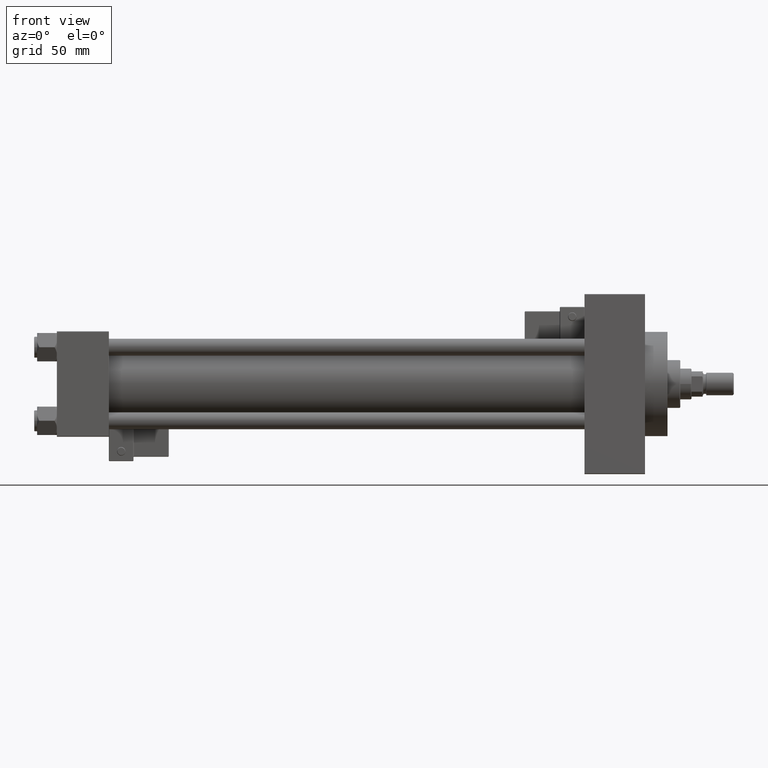
[diagram: clean part render]
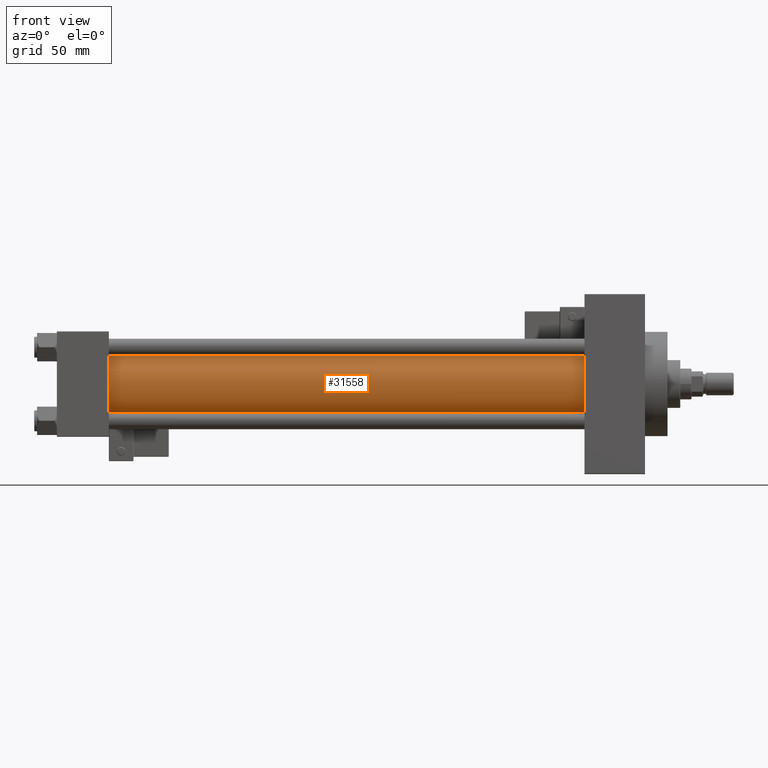
[diagram: same view with one face highlighted and labeled with its STEP entity id]
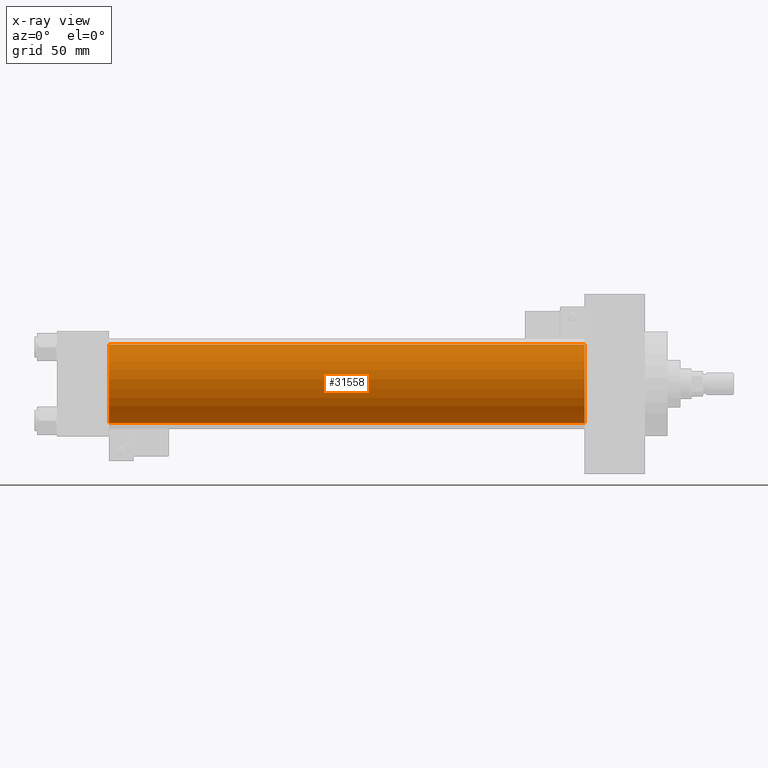
[diagram: x-ray of the same camera — body ghosted, the highlighted face saturated]
A machine part, front view. The second image highlights one B-rep face of the part: STEP entity #31558.
The next image is the same camera in x-ray: the body ghosted, the highlighted face saturated — about 0% of this face is hidden behind the body in this view.
In plain terms, the highlighted cylindrical surface (partial cylindrical patch) has radius 28 mm, axis along (-1, -0, -0).
Its self-contained STEP definition (entity closure, byte-faithful):
#539 = ORIENTED_EDGE ( 'NONE', *, *, #37946, .F. ) ;
#540 = ORIENTED_EDGE ( 'NONE', *, *, #38820, .T. ) ;
#1988 = ORIENTED_EDGE ( 'NONE', *, *, #3139, .F. ) ;
#2686 = DIRECTION ( 'NONE',  ( 0.000000000000000000, 0.000000000000000000, 1.000000000000000000 ) ) ;
#3139 = EDGE_CURVE ( 'NONE', #11517, #10291, #29356, .T. ) ;
#5428 = DIRECTION ( 'NONE',  ( -1.000000000000000000, -0.000000000000000000, -0.000000000000000000 ) ) ;
#5485 = CARTESIAN_POINT ( 'NONE',  ( 375.0000000000000000, 8.269258236473784371E-16, -28.00000000000000000 ) ) ;
#5670 = DIRECTION ( 'NONE',  ( 0.000000000000000000, 0.000000000000000000, 1.000000000000000000 ) ) ;
#5907 = AXIS2_PLACEMENT_3D ( 'NONE', #50000, #51019, #2686 ) ;
#7958 = EDGE_LOOP ( 'NONE', ( #1988, #539, #21555, #540 ) ) ;
#8577 = FACE_OUTER_BOUND ( 'NONE', #7958, .T. ) ;
#9455 = DIRECTION ( 'NONE',  ( 0.000000000000000000, 0.000000000000000000, -1.000000000000000000 ) ) ;
#10033 = VECTOR ( 'NONE', #37710, 1000.000000000000000 ) ;
#10291 = VERTEX_POINT ( 'NONE', #17307 ) ;
#11517 = VERTEX_POINT ( 'NONE', #37728 ) ;
#12373 = VECTOR ( 'NONE', #37506, 1000.000000000000000 ) ;
#14727 = CARTESIAN_POINT ( 'NONE',  ( 375.0000000000000000, -2.602085213965210642E-15, 28.00000000000000000 ) ) ;
#15893 = CIRCLE ( 'NONE', #34353, 28.00000000000000000 ) ;
#16746 = VERTEX_POINT ( 'NONE', #27393 ) ;
#17307 = CARTESIAN_POINT ( 'NONE',  ( 36.99999999999997868, 8.269258236473784371E-16, -28.00000000000000000 ) ) ;
#20475 = DIRECTION ( 'NONE',  ( 1.000000000000000000, 0.000000000000000000, 0.000000000000000000 ) ) ;
#21555 = ORIENTED_EDGE ( 'NONE', *, *, #40577, .T. ) ;
#27393 = CARTESIAN_POINT ( 'NONE',  ( 36.99999999999997868, -2.602085213965210642E-15, 28.00000000000000000 ) ) ;
#28960 = AXIS2_PLACEMENT_3D ( 'NONE', #36660, #5428, #5670 ) ;
#29356 = LINE ( 'NONE', #5485, #12373 ) ;
#31558 = ADVANCED_FACE ( 'NONE', ( #8577 ), #39305, .T. ) ;
#34353 = AXIS2_PLACEMENT_3D ( 'NONE', #49397, #20475, #9455 ) ;
#34386 = CIRCLE ( 'NONE', #5907, 28.00000000000000000 ) ;
#36660 = CARTESIAN_POINT ( 'NONE',  ( 375.0000000000000000, -2.602085213965210642E-15, 0.000000000000000000 ) ) ;
#37506 = DIRECTION ( 'NONE',  ( -1.000000000000000000, -0.000000000000000000, -0.000000000000000000 ) ) ;
#37710 = DIRECTION ( 'NONE',  ( -1.000000000000000000, -0.000000000000000000, -0.000000000000000000 ) ) ;
#37728 = CARTESIAN_POINT ( 'NONE',  ( 375.0000000000000000, 8.269258236473784371E-16, -28.00000000000000000 ) ) ;
#37946 = EDGE_CURVE ( 'NONE', #43762, #11517, #15893, .T. ) ;
#38820 = EDGE_CURVE ( 'NONE', #16746, #10291, #34386, .T. ) ;
#39305 = CYLINDRICAL_SURFACE ( 'NONE', #28960, 28.00000000000000000 ) ;
#40577 = EDGE_CURVE ( 'NONE', #43762, #16746, #45870, .T. ) ;
#42691 = CARTESIAN_POINT ( 'NONE',  ( 375.0000000000000000, -2.602085213965210642E-15, 28.00000000000000000 ) ) ;
#43762 = VERTEX_POINT ( 'NONE', #14727 ) ;
#45870 = LINE ( 'NONE', #42691, #10033 ) ;
#49397 = CARTESIAN_POINT ( 'NONE',  ( 375.0000000000000000, -2.602085213965210642E-15, 0.000000000000000000 ) ) ;
#50000 = CARTESIAN_POINT ( 'NONE',  ( 36.99999999999997868, -2.602085213965210642E-15, 0.000000000000000000 ) ) ;
#51019 = DIRECTION ( 'NONE',  ( 1.000000000000000000, -0.000000000000000000, 0.000000000000000000 ) ) ;